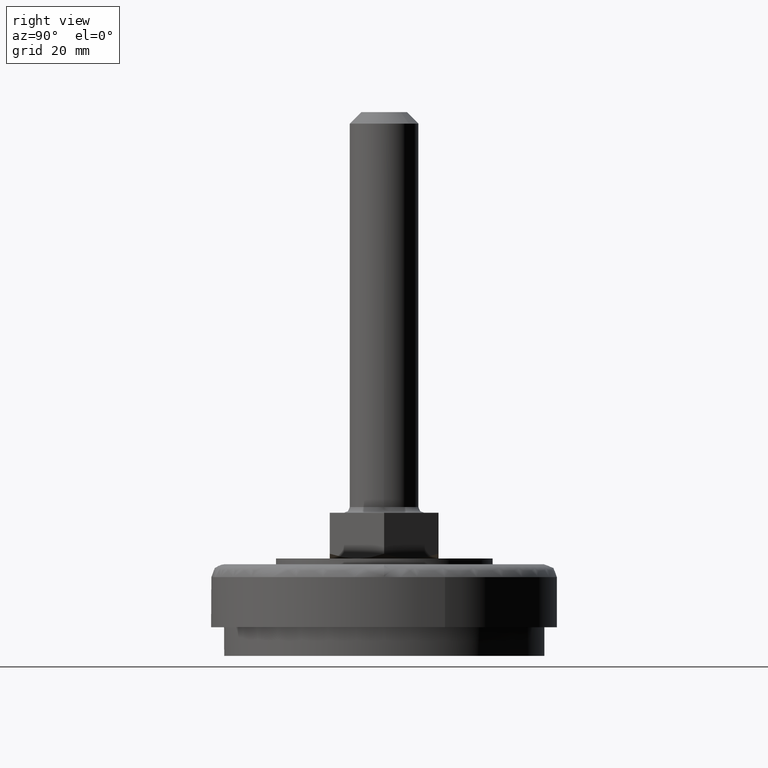
[diagram: clean part render]
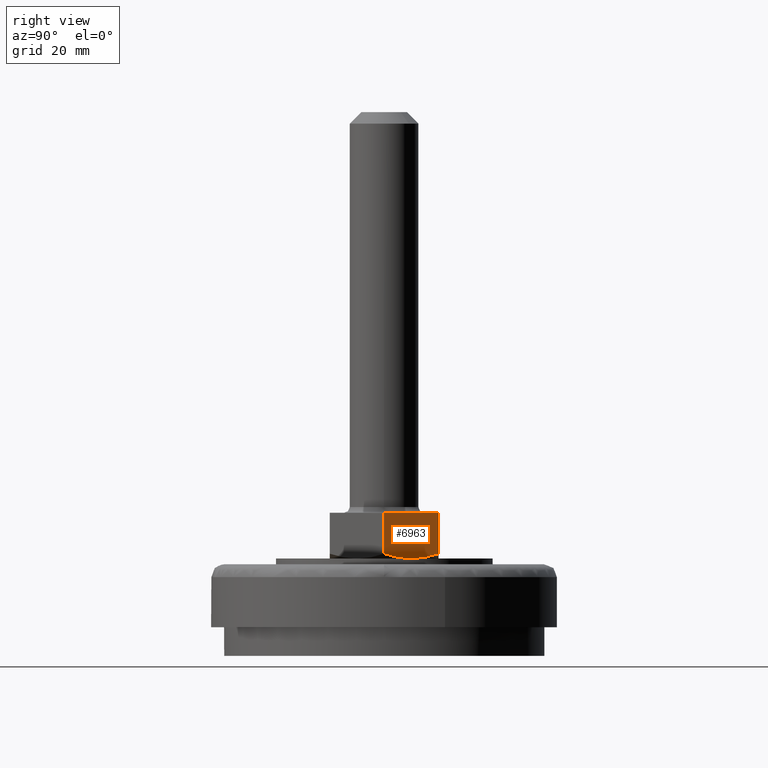
[diagram: same view with one face highlighted and labeled with its STEP entity id]
A machine part, right view. The second image highlights one B-rep face of the part: STEP entity #6963.
In plain terms, the highlighted face is a freeform B-spline surface patch.
Its self-contained STEP definition (entity closure, byte-faithful):
#6537=CARTESIAN_POINT('',(5.465171999999861,9.500000000000290,17.846992893609301));
#6538=VERTEX_POINT('',#6537);
#6561=CARTESIAN_POINT('',(7.996576551859230,5.115479055557880,17.0));
#6562=VERTEX_POINT('',#6561);
#6563=CARTESIAN_POINT('',(5.465171999999861,9.500000000000290,17.846992893609301));
#6564=CARTESIAN_POINT('',(5.577017726491716,9.306277534742922,17.782244535237119));
#6565=CARTESIAN_POINT('',(5.689371102711125,9.111675794435955,17.720159341917789));
#6566=CARTESIAN_POINT('',(5.915220766519865,8.720492733420542,17.601984746183181));
#6567=CARTESIAN_POINT('',(6.028836443223060,8.523704624717700,17.545848665236029));
#6568=CARTESIAN_POINT('',(6.369728091784802,7.933263017189336,17.388352575032840));
#6569=CARTESIAN_POINT('',(6.597526181894319,7.538705183098564,17.297646392952540));
#6570=CARTESIAN_POINT('',(7.054375398980464,6.747419191574596,17.149581724500091));
#6571=CARTESIAN_POINT('',(7.283427723150810,6.350688960541228,17.092255099641950));
#6572=CARTESIAN_POINT('',(7.673964604533955,5.674259294352995,17.026454138639949));
#6573=CARTESIAN_POINT('',(7.835092752396849,5.395177178250632,17.008494502533981));
#6574=CARTESIAN_POINT('',(7.996576551859230,5.115479055557880,17.0));
#6575=B_SPLINE_CURVE_WITH_KNOTS('',3,(#6563,#6564,#6565,#6566,#6567,#6568,#6569,#6570,#6571,#6572,#6573,#6574),.UNSPECIFIED.,.F.,.U.,(4,2,2,2,2,4),(0.0,0.062500000000000,0.125000000000001,0.250000000000001,0.375000000000001,0.462477575542321),.UNSPECIFIED.);
#6576=EDGE_CURVE('',#6538,#6562,#6575,.T.);
#6785=CARTESIAN_POINT('',(10.949999999999999,3.094224E-016,17.841311446569101));
#6786=VERTEX_POINT('',#6785);
#6804=CARTESIAN_POINT('',(8.428422785282800,4.367499498582900,17.0));
#6805=VERTEX_POINT('',#6804);
#6819=CARTESIAN_POINT('',(8.428422785282800,4.367499498582900,17.0));
#6820=CARTESIAN_POINT('',(8.585394134035548,4.095617169155051,17.008257396317759));
#6821=CARTESIAN_POINT('',(8.742702746284985,3.823150682262546,17.025490561546810));
#6822=CARTESIAN_POINT('',(8.958509709472574,3.449362087564194,17.061267568353841));
#6823=CARTESIAN_POINT('',(9.016718898792881,3.348540822331652,17.072115801348680));
#6824=CARTESIAN_POINT('',(9.133226718530848,3.146743375354159,17.096192609797409));
#6825=CARTESIAN_POINT('',(9.191552107322515,3.045720846749644,17.109430702927600));
#6826=CARTESIAN_POINT('',(9.365833190624731,2.743857180036480,17.152434440876370));
#6827=CARTESIAN_POINT('',(9.481365361545082,2.543749606245035,17.185540618998399));
#6828=CARTESIAN_POINT('',(10.056017640929850,1.548422742001468,17.371445046259300));
#6829=CARTESIAN_POINT('',(10.506157469261860,0.768757751749437,17.585056156375639));
#6830=CARTESIAN_POINT('',(10.949999999999999,3.094224E-016,17.841311446569101));
#6831=B_SPLINE_CURVE_WITH_KNOTS('',3,(#6819,#6820,#6821,#6822,#6823,#6824,#6825,#6826,#6827,#6828,#6829,#6830),.UNSPECIFIED.,.F.,.U.,(4,2,2,2,2,4),(0.540302320666159,0.625000000000001,0.656250000000001,0.687500000000001,0.750000000000001,1.0),.UNSPECIFIED.);
#6832=EDGE_CURVE('',#6805,#6786,#6831,.T.);
#6842=CARTESIAN_POINT('',(5.465172000000000,9.500000000000000,25.0));
#6843=VERTEX_POINT('',#6842);
#6872=CARTESIAN_POINT('',(10.949999999999999,0.0,25.0));
#6873=VERTEX_POINT('',#6872);
#6879=CARTESIAN_POINT('',(10.949999999999999,0.0,25.0));
#6880=CARTESIAN_POINT('',(5.465172000000000,9.500000000000000,25.0));
#6881=QUASI_UNIFORM_CURVE('',1,(#6879,#6880),.UNSPECIFIED.,.F.,.U.);
#6882=EDGE_CURVE('',#6873,#6843,#6881,.T.);
#6911=CARTESIAN_POINT('',(8.428422785282800,4.367499498582900,17.0));
#6912=CARTESIAN_POINT('',(7.996576551859230,5.115479055557880,17.0));
#6913=QUASI_UNIFORM_CURVE('',1,(#6911,#6912),.UNSPECIFIED.,.F.,.U.);
#6914=EDGE_CURVE('',#6805,#6562,#6913,.T.);
#6942=CARTESIAN_POINT('',(5.191204800542876,9.974525070766665,16.600400015505549));
#6943=CARTESIAN_POINT('',(11.223967297533351,-0.474525240639614,16.600400015505549));
#6944=CARTESIAN_POINT('',(5.191204800542876,9.974525070766665,25.399600199071170));
#6945=CARTESIAN_POINT('',(11.223967297533351,-0.474525240639614,25.399600199071170));
#6946=B_SPLINE_SURFACE_WITH_KNOTS('',1,1,((#6942,#6944),(#6943,#6945)),.UNSPECIFIED.,.F.,.F.,.U.,(2,2),(2,2),(0.0,12.065524263594790),(0.0,8.799200183565617),.UNSPECIFIED.);
#6947=ORIENTED_EDGE('',*,*,#6576,.F.);
#6948=CARTESIAN_POINT('',(5.465172000000000,9.500000000000000,25.0));
#6949=CARTESIAN_POINT('',(5.465171999999861,9.500000000000290,17.846992893609301));
#6950=QUASI_UNIFORM_CURVE('',1,(#6948,#6949),.UNSPECIFIED.,.F.,.U.);
#6951=EDGE_CURVE('',#6843,#6538,#6950,.T.);
#6952=ORIENTED_EDGE('',*,*,#6951,.F.);
#6953=ORIENTED_EDGE('',*,*,#6882,.F.);
#6954=CARTESIAN_POINT('',(10.949999999999999,0.0,25.0));
#6955=CARTESIAN_POINT('',(10.949999999999999,3.094224E-016,17.841311446569101));
#6956=QUASI_UNIFORM_CURVE('',1,(#6954,#6955),.UNSPECIFIED.,.F.,.U.);
#6957=EDGE_CURVE('',#6873,#6786,#6956,.T.);
#6958=ORIENTED_EDGE('',*,*,#6957,.T.);
#6959=ORIENTED_EDGE('',*,*,#6832,.F.);
#6960=ORIENTED_EDGE('',*,*,#6914,.T.);
#6961=EDGE_LOOP('',(#6947,#6952,#6953,#6958,#6959,#6960));
#6962=FACE_OUTER_BOUND('',#6961,.T.);
#6963=ADVANCED_FACE('',(#6962),#6946,.F.);